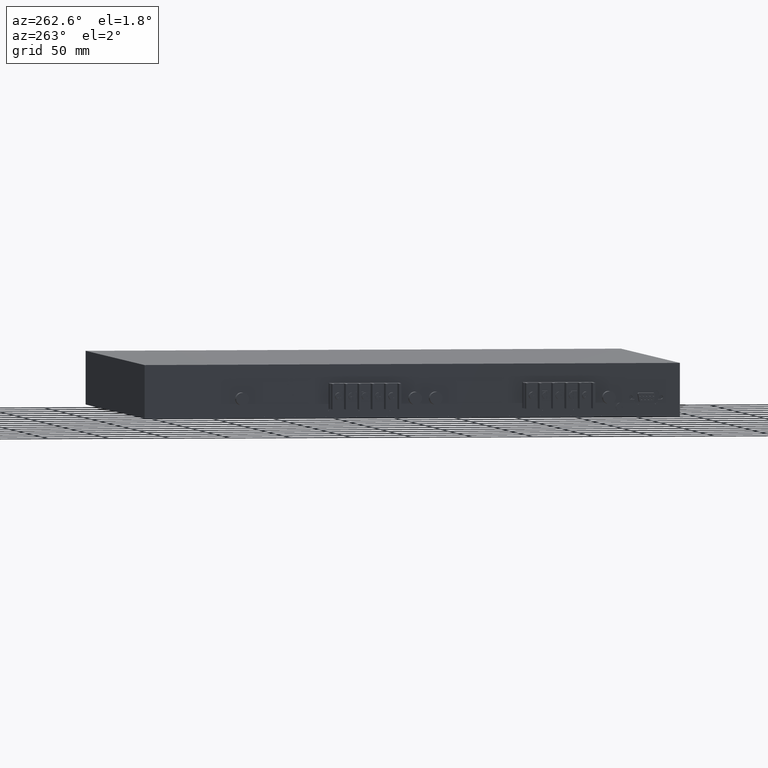
[diagram: clean part render]
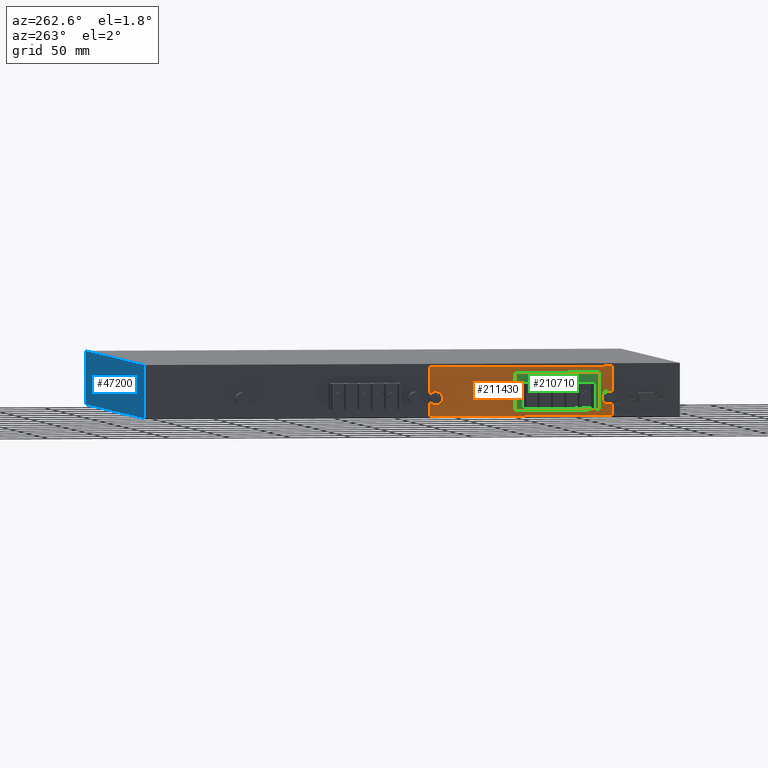
[diagram: same view with three faces highlighted in distinct colors, each labeled with its STEP entity id]
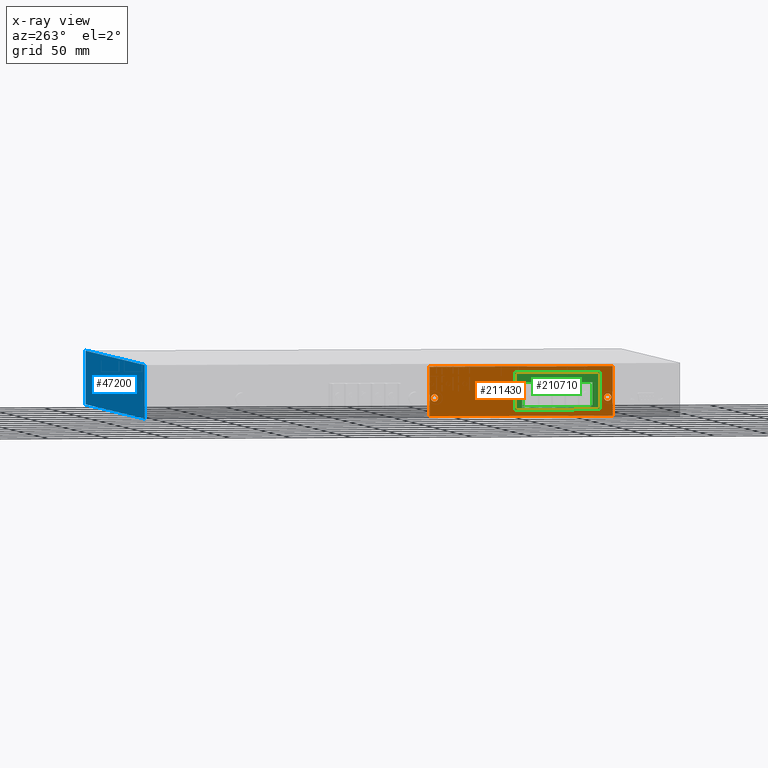
[diagram: x-ray of the same camera — body ghosted, the three highlighted faces saturated]
A machine part, auxiliary view with three faces highlighted in distinct colors.
The next image is the same camera in x-ray (body ghosted, the three faces saturated) — at least one of them is partly hidden behind the body in this view.
Their STEP definitions:

[orange] entity #211430 — the highlighted planar face has unit normal (-1, 0, 0).
#83600=CARTESIAN_POINT('',(-14.0939869574354,0.,0.09999999998027));
#83610=DIRECTION('',(0.,1.,0.));
#83620=VECTOR('',#83610,1.);
#83630=LINE('',#83600,#83620);
#83640=CARTESIAN_POINT('',(-14.0939869574354,-38.4963677763395,
0.09999999998027));
#83650=VERTEX_POINT('',#83640);
#83660=CARTESIAN_POINT('',(-14.0939869574354,2.0036322236605,
0.09999999998027));
#83670=VERTEX_POINT('',#83660);
#83680=EDGE_CURVE('',#83650,#83670,#83630,.T.);
#83980=CARTESIAN_POINT('',(0.,-38.4963677763395,0.09999999998027));
#83990=DIRECTION('',(1.,0.,0.));
#84000=VECTOR('',#83990,1.);
#84010=LINE('',#83980,#84000);
#84020=CARTESIAN_POINT('',(-165.093986957435,-38.4963677763395,
0.09999999998027));
#84030=VERTEX_POINT('',#84020);
#84040=EDGE_CURVE('',#84030,#83650,#84010,.T.);
#161090=CARTESIAN_POINT('',(-154.593986957435,-2.79636777633966,
0.09999999998027));
#161100=VERTEX_POINT('',#161090);
#161130=CARTESIAN_POINT('',(-154.593986957435,0.,0.09999999998027));
#161140=DIRECTION('',(0.,1.,0.));
#161150=VECTOR('',#161140,1.);
#161160=LINE('',#161130,#161150);
#161170=CARTESIAN_POINT('',(-154.593986957435,-33.7963677763396,
0.09999999998027));
#161180=VERTEX_POINT('',#161170);
#161190=EDGE_CURVE('',#161180,#161100,#161160,.T.);
#161510=CARTESIAN_POINT('',(0.,-33.7963677763396,0.09999999998027));
#161520=DIRECTION('',(-1.,0.,0.));
#161530=VECTOR('',#161520,1.);
#161540=LINE('',#161510,#161530);
#161550=CARTESIAN_POINT('',(-84.593986957435,-33.7963677763396,
0.09999999998027));
#161560=VERTEX_POINT('',#161550);
#161570=EDGE_CURVE('',#161560,#161180,#161540,.T.);
#161820=CARTESIAN_POINT('',(-84.593986957435,0.,0.09999999998027));
#161830=DIRECTION('',(0.,-1.,0.));
#161840=VECTOR('',#161830,1.);
#161850=LINE('',#161820,#161840);
#161860=CARTESIAN_POINT('',(-84.593986957435,-2.79636777633966,
0.09999999998027));
#161870=VERTEX_POINT('',#161860);
#161880=EDGE_CURVE('',#161870,#161560,#161850,.T.);
#162110=CARTESIAN_POINT('',(0.,-2.79636777633966,0.09999999998027));
#162120=DIRECTION('',(1.,0.,0.));
#162130=VECTOR('',#162120,1.);
#162140=LINE('',#162110,#162130);
#162150=EDGE_CURVE('',#161100,#161870,#162140,.T.);
#182890=CARTESIAN_POINT('',(-165.093986957435,0.,0.09999999998027));
#182900=DIRECTION('',(0.,-1.,0.));
#182910=VECTOR('',#182900,1.);
#182920=LINE('',#182890,#182910);
#182930=CARTESIAN_POINT('',(-165.093986957435,2.0036322236605,
0.09999999998027));
#182940=VERTEX_POINT('',#182930);
#182950=EDGE_CURVE('',#182940,#84030,#182920,.T.);
#209100=CARTESIAN_POINT('',(-164.093986957435,-23.4963677763395,
0.0999999999802696));
#209110=VERTEX_POINT('',#209100);
#209140=CARTESIAN_POINT('',(-161.093986957435,-23.4963677763395,
0.0999999999802696));
#209150=DIRECTION('',(0.,0.,1.));
#209160=DIRECTION('',(1.,0.,0.));
#209170=AXIS2_PLACEMENT_3D('',#209140,#209150,#209160);
#209180=CIRCLE('',#209170,3.00000000000001);
#209190=CARTESIAN_POINT('',(-158.093986957435,-23.4963677763395,
0.0999999999802696));
#209200=VERTEX_POINT('',#209190);
#209210=EDGE_CURVE('',#209110,#209200,#209180,.T.);
#210810=CARTESIAN_POINT('',(-21.0939869574354,-23.4963677763395,
0.0999999999802696));
#210820=VERTEX_POINT('',#210810);
#210850=CARTESIAN_POINT('',(-18.0939869574354,-23.4963677763395,
0.0999999999802696));
#210860=DIRECTION('',(0.,0.,1.));
#210870=DIRECTION('',(1.,0.,0.));
#210880=AXIS2_PLACEMENT_3D('',#210850,#210860,#210870);
#210890=CIRCLE('',#210880,2.99999999999999);
#210900=CARTESIAN_POINT('',(-15.0939869574354,-23.4963677763395,
0.0999999999802696));
#210910=VERTEX_POINT('',#210900);
#210920=EDGE_CURVE('',#210820,#210910,#210890,.T.);
#211110=CARTESIAN_POINT('',(-10.3189208074354,-39.5089339263395,
0.09999999998027));
#211120=DIRECTION('',(0.,0.,-1.));
#211130=DIRECTION('',(-1.,0.,0.));
#211140=AXIS2_PLACEMENT_3D('',#211110,#211120,#211130);
#211150=PLANE('',#211140);
#211160=ORIENTED_EDGE('',*,*,#83680,.F.);
#211170=CARTESIAN_POINT('',(0.,2.0036322236605,0.09999999998027));
#211180=DIRECTION('',(-1.,0.,0.));
#211190=VECTOR('',#211180,1.);
#211200=LINE('',#211170,#211190);
#211210=EDGE_CURVE('',#83670,#182940,#211200,.T.);
#211220=ORIENTED_EDGE('',*,*,#211210,.F.);
#211230=ORIENTED_EDGE('',*,*,#182950,.F.);
#211240=ORIENTED_EDGE('',*,*,#84040,.F.);
#211250=EDGE_LOOP('',(#211240,#211230,#211220,#211160));
#211260=FACE_OUTER_BOUND('',#211250,.T.);
#211270=ORIENTED_EDGE('',*,*,#210920,.T.);
#211280=EDGE_CURVE('',#210910,#210820,#210890,.T.);
#211290=ORIENTED_EDGE('',*,*,#211280,.T.);
#211300=EDGE_LOOP('',(#211290,#211270));
#211310=FACE_BOUND('',#211300,.T.);
#211320=ORIENTED_EDGE('',*,*,#209210,.T.);
#211330=EDGE_CURVE('',#209200,#209110,#209180,.T.);
#211340=ORIENTED_EDGE('',*,*,#211330,.T.);
#211350=EDGE_LOOP('',(#211340,#211320));
#211360=FACE_BOUND('',#211350,.T.);
#211370=ORIENTED_EDGE('',*,*,#161190,.F.);
#211380=ORIENTED_EDGE('',*,*,#162150,.F.);
#211390=ORIENTED_EDGE('',*,*,#161880,.F.);
#211400=ORIENTED_EDGE('',*,*,#161570,.F.);
#211410=EDGE_LOOP('',(#211400,#211390,#211380,#211370));
#211420=FACE_BOUND('',#211410,.T.);
#211430=ADVANCED_FACE('',(#211260,#211310,#211360,#211420),#211150,.T.);

[blue] entity #47200 — the highlighted planar face has unit normal (0, 1, 0).
#100=CARTESIAN_POINT('',(221.306013042565,4.40363222366137,-1.9725E-11))
;
#110=VERTEX_POINT('',#100);
#160=CARTESIAN_POINT('',(221.306013042565,4.40363222366137,0.));
#170=DIRECTION('',(0.,0.,1.));
#180=VECTOR('',#170,1.);
#190=LINE('',#160,#180);
#200=CARTESIAN_POINT('',(221.306013042565,4.40363222366137,
374.99999999998));
#210=VERTEX_POINT('',#200);
#220=EDGE_CURVE('',#110,#210,#190,.T.);
#600=CARTESIAN_POINT('',(221.306013042565,-39.5963677763395,
374.99999999998));
#610=VERTEX_POINT('',#600);
#640=CARTESIAN_POINT('',(221.306013042565,-39.5963677763395,0.));
#650=DIRECTION('',(0.,0.,-1.));
#660=VECTOR('',#650,1.);
#670=LINE('',#640,#660);
#680=CARTESIAN_POINT('',(221.306013042565,-39.5963677763395,-1.9725E-11)
);
#690=VERTEX_POINT('',#680);
#700=EDGE_CURVE('',#610,#690,#670,.T.);
#1080=CARTESIAN_POINT('',(221.306013042565,0.,374.99999999998));
#1090=DIRECTION('',(0.,1.,0.));
#1100=VECTOR('',#1090,1.);
#1110=LINE('',#1080,#1100);
#1120=EDGE_CURVE('',#610,#210,#1110,.T.);
#47040=CARTESIAN_POINT('',(221.306013042565,5.50369837366139,
384.37506614998));
#47050=DIRECTION('',(1.,0.,0.));
#47060=DIRECTION('',(0.,-1.,0.));
#47070=AXIS2_PLACEMENT_3D('',#47040,#47050,#47060);
#47080=PLANE('',#47070);
#47090=CARTESIAN_POINT('',(221.306013042565,0.,-1.97246663447004E-11));
#47100=DIRECTION('',(0.,1.,0.));
#47110=VECTOR('',#47100,1.);
#47120=LINE('',#47090,#47110);
#47130=EDGE_CURVE('',#690,#110,#47120,.T.);
#47140=ORIENTED_EDGE('',*,*,#47130,.T.);
#47150=ORIENTED_EDGE('',*,*,#700,.T.);
#47160=ORIENTED_EDGE('',*,*,#1120,.F.);
#47170=ORIENTED_EDGE('',*,*,#220,.T.);
#47180=EDGE_LOOP('',(#47170,#47160,#47150,#47140));
#47190=FACE_OUTER_BOUND('',#47180,.T.);
#47200=ADVANCED_FACE('',(#47190),#47080,.T.);

[green] entity #210710 — the highlighted planar face has unit normal (-1, 0, 0).
#98070=CARTESIAN_POINT('',(-148.593986957435,-10.9963677763395,
0.199999999980264));
#98080=VERTEX_POINT('',#98070);
#98110=CARTESIAN_POINT('',(-148.593986957435,0.,0.199999999980264));
#98120=DIRECTION('',(0.,-1.,0.));
#98130=VECTOR('',#98120,1.);
#98140=LINE('',#98110,#98130);
#98150=CARTESIAN_POINT('',(-148.593986957435,-31.9963677763395,
0.199999999980264));
#98160=VERTEX_POINT('',#98150);
#98170=EDGE_CURVE('',#98080,#98160,#98140,.T.);
#100890=CARTESIAN_POINT('',(-90.5939869574353,-10.9963677763395,
0.199999999980264));
#100900=VERTEX_POINT('',#100890);
#100980=CARTESIAN_POINT('',(-90.5939869574353,-31.9963677763395,
0.199999999980264));
#100990=VERTEX_POINT('',#100980);
#101020=CARTESIAN_POINT('',(-90.5939869574353,0.,0.199999999980264));
#101030=DIRECTION('',(0.,1.,0.));
#101040=VECTOR('',#101030,1.);
#101050=LINE('',#101020,#101040);
#101060=EDGE_CURVE('',#100990,#100900,#101050,.T.);
#160950=CARTESIAN_POINT('',(-154.593986957435,0.,0.199999999980264));
#160960=DIRECTION('',(0.,1.,0.));
#160970=VECTOR('',#160960,1.);
#160980=LINE('',#160950,#160970);
#160990=CARTESIAN_POINT('',(-154.593986957435,-33.7963677763396,
0.199999999980264));
#161000=VERTEX_POINT('',#160990);
#161010=CARTESIAN_POINT('',(-154.593986957435,-2.79636777633966,
0.199999999980264));
#161020=VERTEX_POINT('',#161010);
#161030=EDGE_CURVE('',#161000,#161020,#160980,.T.);
#161420=CARTESIAN_POINT('',(0.,-33.7963677763396,0.199999999980264));
#161430=DIRECTION('',(-1.,0.,0.));
#161440=VECTOR('',#161430,1.);
#161450=LINE('',#161420,#161440);
#161460=CARTESIAN_POINT('',(-84.593986957435,-33.7963677763396,
0.199999999980264));
#161470=VERTEX_POINT('',#161460);
#161480=EDGE_CURVE('',#161470,#161000,#161450,.T.);
#161730=CARTESIAN_POINT('',(-84.593986957435,0.,0.199999999980264));
#161740=DIRECTION('',(0.,-1.,0.));
#161750=VECTOR('',#161740,1.);
#161760=LINE('',#161730,#161750);
#161770=CARTESIAN_POINT('',(-84.593986957435,-2.79636777633966,
0.199999999980264));
#161780=VERTEX_POINT('',#161770);
#161790=EDGE_CURVE('',#161780,#161470,#161760,.T.);
#162040=CARTESIAN_POINT('',(0.,-2.79636777633966,0.199999999980264));
#162050=DIRECTION('',(1.,0.,0.));
#162060=VECTOR('',#162050,1.);
#162070=LINE('',#162040,#162060);
#162080=EDGE_CURVE('',#161020,#161780,#162070,.T.);
#182720=CARTESIAN_POINT('',(0.,-31.9963677763395,0.199999999980264));
#182730=DIRECTION('',(-1.,0.,0.));
#182740=VECTOR('',#182730,1.);
#182750=LINE('',#182720,#182740);
#182760=EDGE_CURVE('',#100990,#98160,#182750,.T.);
#199350=CARTESIAN_POINT('',(0.,-10.9963677763395,0.199999999980264));
#199360=DIRECTION('',(-1.,0.,0.));
#199370=VECTOR('',#199360,1.);
#199380=LINE('',#199350,#199370);
#199390=EDGE_CURVE('',#100900,#98080,#199380,.T.);
#210540=CARTESIAN_POINT('',(-82.843920807435,-34.5714339263396,
0.199999999980264));
#210550=DIRECTION('',(0.,0.,-1.));
#210560=DIRECTION('',(-1.,0.,0.));
#210570=AXIS2_PLACEMENT_3D('',#210540,#210550,#210560);
#210580=PLANE('',#210570);
#210590=ORIENTED_EDGE('',*,*,#161790,.T.);
#210600=ORIENTED_EDGE('',*,*,#162080,.T.);
#210610=ORIENTED_EDGE('',*,*,#161030,.T.);
#210620=ORIENTED_EDGE('',*,*,#161480,.T.);
#210630=EDGE_LOOP('',(#210620,#210610,#210600,#210590));
#210640=FACE_OUTER_BOUND('',#210630,.T.);
#210650=ORIENTED_EDGE('',*,*,#101060,.T.);
#210660=ORIENTED_EDGE('',*,*,#182760,.F.);
#210670=ORIENTED_EDGE('',*,*,#98170,.T.);
#210680=ORIENTED_EDGE('',*,*,#199390,.T.);
#210690=EDGE_LOOP('',(#210680,#210670,#210660,#210650));
#210700=FACE_BOUND('',#210690,.T.);
#210710=ADVANCED_FACE('',(#210640,#210700),#210580,.T.);